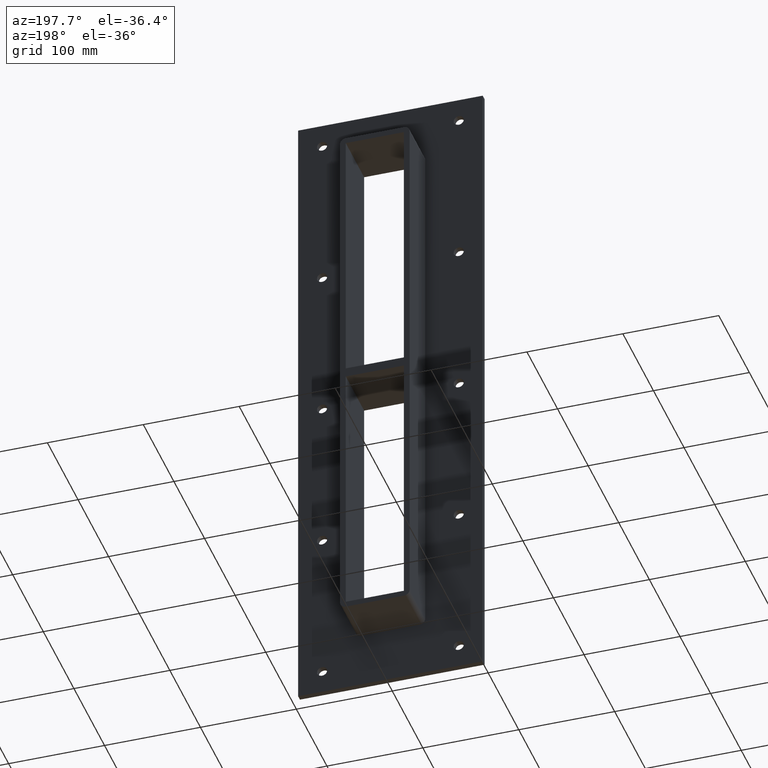
[diagram: clean part render]
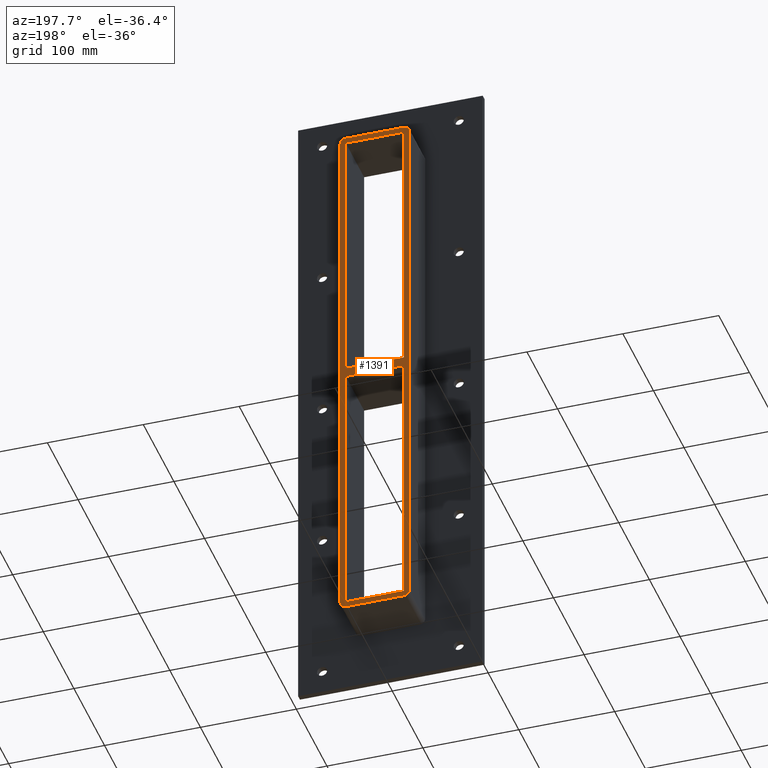
[diagram: same view with one face highlighted and labeled with its STEP entity id]
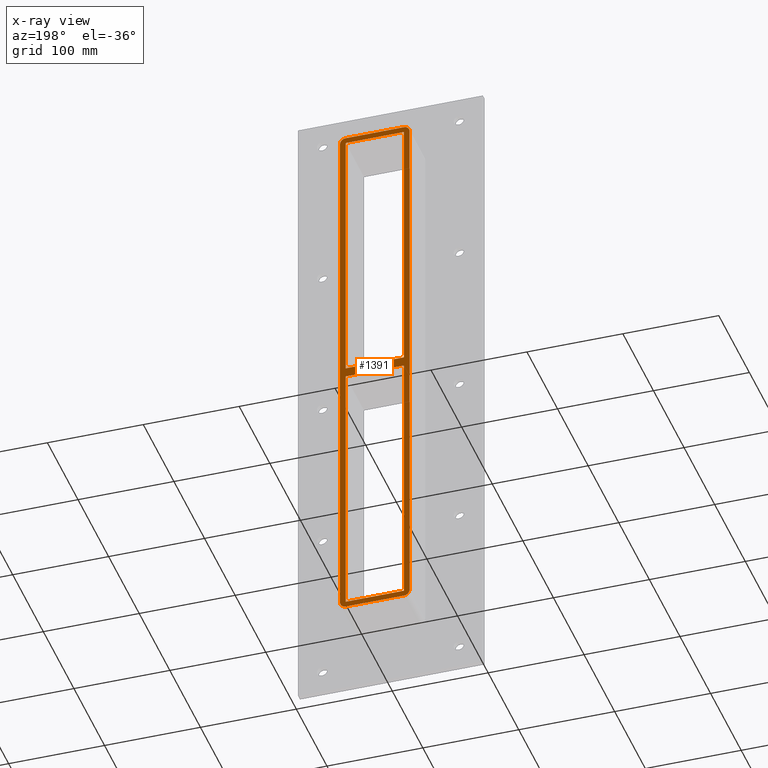
[diagram: x-ray of the same camera — body ghosted, the highlighted face saturated]
A machine part, auxiliary view. The second image highlights one B-rep face of the part: STEP entity #1391.
The next image is the same camera in x-ray: the body ghosted, the highlighted face saturated — about 0% of this face is hidden behind the body in this view.
In plain terms, the highlighted planar face has unit normal (0, 1, 0).
Its self-contained STEP definition (entity closure, byte-faithful):
#363=CARTESIAN_POINT('',(-30.249999999997087,57.0,-5.000000000011369));
#364=VERTEX_POINT('',#363);
#371=CARTESIAN_POINT('',(30.249999999996362,57.0,-5.000000000010796));
#372=VERTEX_POINT('',#371);
#373=CARTESIAN_POINT('',(30.249999999996362,57.0,-5.000000000010795));
#374=DIRECTION('',(-1.0,0.0,0.0));
#375=VECTOR('',#374,60.499999999993449);
#376=LINE('',#373,#375);
#377=EDGE_CURVE('',#372,#364,#376,.T.);
#403=CARTESIAN_POINT('',(30.249999999999019,57.0,5.0));
#404=VERTEX_POINT('',#403);
#411=CARTESIAN_POINT('',(-30.24999999999709,57.0,5.0));
#412=VERTEX_POINT('',#411);
#413=CARTESIAN_POINT('',(-30.24999999999709,57.0,5.0));
#414=DIRECTION('',(1.0,0.0,0.0));
#415=VECTOR('',#414,60.499999999996106);
#416=LINE('',#413,#415);
#417=EDGE_CURVE('',#412,#404,#416,.T.);
#434=CARTESIAN_POINT('',(-30.249999999999986,57.0,283.0));
#435=VERTEX_POINT('',#434);
#436=CARTESIAN_POINT('',(-30.249999999999986,57.0,282.99999999999994));
#437=DIRECTION('',(0.0,0.0,-1.0));
#438=VECTOR('',#437,277.99999999999994);
#439=LINE('',#436,#438);
#440=EDGE_CURVE('',#435,#412,#439,.T.);
#465=CARTESIAN_POINT('',(30.249999999999986,57.0,-283.0));
#466=VERTEX_POINT('',#465);
#467=CARTESIAN_POINT('',(30.249999999999986,57.0,-283.0));
#468=DIRECTION('',(0.0,0.0,1.0));
#469=VECTOR('',#468,277.9999999999892);
#470=LINE('',#467,#469);
#471=EDGE_CURVE('',#466,#372,#470,.T.);
#504=CARTESIAN_POINT('',(30.249999999999986,57.0,283.0));
#505=VERTEX_POINT('',#504);
#512=CARTESIAN_POINT('',(30.249999999999986,57.0,5.0));
#513=DIRECTION('',(0.0,0.0,1.0));
#514=VECTOR('',#513,278.0);
#515=LINE('',#512,#514);
#516=EDGE_CURVE('',#404,#505,#515,.T.);
#883=CARTESIAN_POINT('',(-30.249999999999986,57.0,-283.0));
#884=VERTEX_POINT('',#883);
#891=CARTESIAN_POINT('',(-30.249999999999986,57.0,-5.000000000011369));
#892=DIRECTION('',(0.0,0.0,-1.0));
#893=VECTOR('',#892,277.99999999998863);
#894=LINE('',#891,#893);
#895=EDGE_CURVE('',#364,#884,#894,.T.);
#938=CARTESIAN_POINT('',(30.250000000000004,57.0,-289.0));
#939=VERTEX_POINT('',#938);
#946=CARTESIAN_POINT('',(36.25,57.0,-283.0));
#947=VERTEX_POINT('',#946);
#948=CARTESIAN_POINT('',(30.250000000000004,57.0,-283.0));
#949=DIRECTION('',(0.0,-1.0,0.0));
#950=DIRECTION('',(0.707106781186546,0.0,-0.707106781186549));
#951=AXIS2_PLACEMENT_3D('',#948,#949,#950);
#952=CIRCLE('',#951,6.000000000000001);
#953=EDGE_CURVE('',#939,#947,#952,.T.);
#994=CARTESIAN_POINT('',(-30.250000000000004,57.0,-289.0));
#995=VERTEX_POINT('',#994);
#1002=CARTESIAN_POINT('',(30.250000000000004,57.0,-289.0));
#1003=DIRECTION('',(-1.0,0.0,0.0));
#1004=VECTOR('',#1003,60.5);
#1005=LINE('',#1002,#1004);
#1006=EDGE_CURVE('',#939,#995,#1005,.T.);
#1067=CARTESIAN_POINT('',(-36.25,57.0,-283.00000000000006));
#1068=VERTEX_POINT('',#1067);
#1075=CARTESIAN_POINT('',(-30.250000000000004,57.0,-283.00000000000006));
#1076=DIRECTION('',(0.0,-1.0,0.0));
#1077=DIRECTION('',(-0.707106781186551,0.0,-0.707106781186544));
#1078=AXIS2_PLACEMENT_3D('',#1075,#1076,#1077);
#1079=CIRCLE('',#1078,6.0);
#1080=EDGE_CURVE('',#1068,#995,#1079,.T.);
#1141=CARTESIAN_POINT('',(-36.25,57.0,283.0));
#1142=VERTEX_POINT('',#1141);
#1149=CARTESIAN_POINT('',(-36.25,57.0,-283.00000000000006));
#1150=DIRECTION('',(0.0,0.0,1.0));
#1151=VECTOR('',#1150,566.0);
#1152=LINE('',#1149,#1151);
#1153=EDGE_CURVE('',#1068,#1142,#1152,.T.);
#1245=CARTESIAN_POINT('',(-30.250000000000004,57.0,289.0));
#1246=VERTEX_POINT('',#1245);
#1253=CARTESIAN_POINT('',(-30.250000000000004,57.0,283.0));
#1254=DIRECTION('',(0.0,-1.0,0.0));
#1255=DIRECTION('',(-0.707106781186546,0.0,0.707106781186549));
#1256=AXIS2_PLACEMENT_3D('',#1253,#1254,#1255);
#1257=CIRCLE('',#1256,6.000000000000001);
#1258=EDGE_CURVE('',#1246,#1142,#1257,.T.);
#1270=CARTESIAN_POINT('',(30.250000000000004,57.0,289.0));
#1271=VERTEX_POINT('',#1270);
#1278=CARTESIAN_POINT('',(-30.250000000000004,57.0,289.0));
#1279=DIRECTION('',(1.0,0.0,0.0));
#1280=VECTOR('',#1279,60.5);
#1281=LINE('',#1278,#1280);
#1282=EDGE_CURVE('',#1246,#1271,#1281,.T.);
#1294=CARTESIAN_POINT('',(36.25,57.0,283.0));
#1295=VERTEX_POINT('',#1294);
#1302=CARTESIAN_POINT('',(30.250000000000004,57.0,283.0));
#1303=DIRECTION('',(0.0,-1.0,0.0));
#1304=DIRECTION('',(0.707106781186546,0.0,0.707106781186549));
#1305=AXIS2_PLACEMENT_3D('',#1302,#1303,#1304);
#1306=CIRCLE('',#1305,6.000000000000001);
#1307=EDGE_CURVE('',#1295,#1271,#1306,.T.);
#1320=CARTESIAN_POINT('',(36.25,57.0,282.99999999999994));
#1321=DIRECTION('',(0.0,0.0,-1.0));
#1322=VECTOR('',#1321,566.0);
#1323=LINE('',#1320,#1322);
#1324=EDGE_CURVE('',#1295,#947,#1323,.T.);
#1336=CARTESIAN_POINT('',(30.249999999999986,57.0,283.0));
#1337=DIRECTION('',(-1.0,0.0,0.0));
#1338=VECTOR('',#1337,60.499999999999972);
#1339=LINE('',#1336,#1338);
#1340=EDGE_CURVE('',#505,#435,#1339,.T.);
#1355=CARTESIAN_POINT('',(-30.249999999999986,57.0,-283.0));
#1356=DIRECTION('',(1.0,0.0,0.0));
#1357=VECTOR('',#1356,60.499999999999972);
#1358=LINE('',#1355,#1357);
#1359=EDGE_CURVE('',#884,#466,#1358,.T.);
#1364=CARTESIAN_POINT('',(0.0,57.0,-1.966144E-014));
#1365=DIRECTION('',(0.0,1.0,0.0));
#1366=DIRECTION('',(0.0,0.0,1.0));
#1367=AXIS2_PLACEMENT_3D('',#1364,#1365,#1366);
#1368=PLANE('',#1367);
#1369=ORIENTED_EDGE('',*,*,#1080,.F.);
#1370=ORIENTED_EDGE('',*,*,#1153,.T.);
#1371=ORIENTED_EDGE('',*,*,#1258,.F.);
#1372=ORIENTED_EDGE('',*,*,#1282,.T.);
#1373=ORIENTED_EDGE('',*,*,#1307,.F.);
#1374=ORIENTED_EDGE('',*,*,#1324,.T.);
#1375=ORIENTED_EDGE('',*,*,#953,.F.);
#1376=ORIENTED_EDGE('',*,*,#1006,.T.);
#1377=EDGE_LOOP('',(#1369,#1370,#1371,#1372,#1373,#1374,#1375,#1376));
#1378=FACE_OUTER_BOUND('',#1377,.T.);
#1379=ORIENTED_EDGE('',*,*,#895,.T.);
#1380=ORIENTED_EDGE('',*,*,#1359,.T.);
#1381=ORIENTED_EDGE('',*,*,#471,.T.);
#1382=ORIENTED_EDGE('',*,*,#377,.T.);
#1383=EDGE_LOOP('',(#1379,#1380,#1381,#1382));
#1384=FACE_BOUND('',#1383,.T.);
#1385=ORIENTED_EDGE('',*,*,#417,.T.);
#1386=ORIENTED_EDGE('',*,*,#516,.T.);
#1387=ORIENTED_EDGE('',*,*,#1340,.T.);
#1388=ORIENTED_EDGE('',*,*,#440,.T.);
#1389=EDGE_LOOP('',(#1385,#1386,#1387,#1388));
#1390=FACE_BOUND('',#1389,.T.);
#1391=ADVANCED_FACE('',(#1378,#1384,#1390),#1368,.T.);